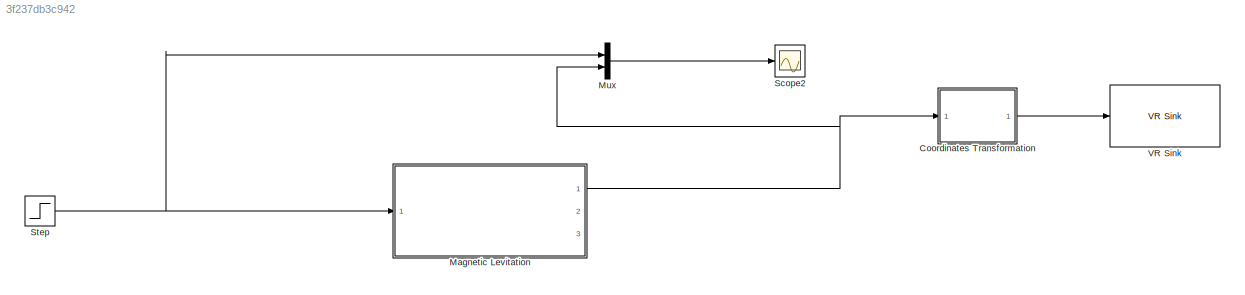
MODEL slx_3f237db3c942
KIND model
CONFIG AbsTol = 1e-5
CONFIG EnableMultiTasking = off
CONFIG FixedStep = 1e-3
CONFIG MaxStep = 0.001
CONFIG MinStep = auto
CONFIG RelTol = 1e-3
CONFIG SampleTimeConstraint = Unconstrained
CONFIG Solver = ode5
CONFIG SolverName = ode5
CONFIG StartTime = 0.0
CONFIG StopTime = 10
WORKSPACE source: MATLAB code (in-file)
WORKSPACE Ts = 1e-3  (= 0.001)
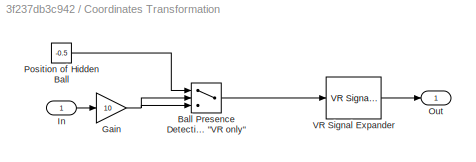
BLOCK [SubSystem] Coordinates Transformation
  Ports = [1, 1]
  RequestExecContextInheritance = off
  Variant = off
BLOCK [Switch] Coordinates Transformation/Ball Presence Detection Value > Threshold = Ball Not Present 1 for "VR only"
  SaturateOnIntegerOverflow = off
  Threshold = 1
BLOCK [Gain] Coordinates Transformation/Gain
  Gain = 10
  OutDataTypeStr = Inherit: Inherit via internal rule
  ParamDataTypeStr = Inherit: Inherit via internal rule
  SaturateOnIntegerOverflow = off
BLOCK [Inport] Coordinates Transformation/In
  IconDisplay = Port number
BLOCK [Outport] Coordinates Transformation/Out
  IconDisplay = Port number
BLOCK [Constant] Coordinates Transformation/Position of Hidden Ball
  Value = -0.5
BLOCK [Reference] Coordinates Transformation/VR Signal Expander  REF=vrlib/VR Signal Expander
  Ports = [1, 1]
  SourceBlock = vrlib/VR Signal Expander
  SourceProductBaseCode = VR
  SourceProductName = Simulink 3D Animation
  SourceType = VR Signal Expander
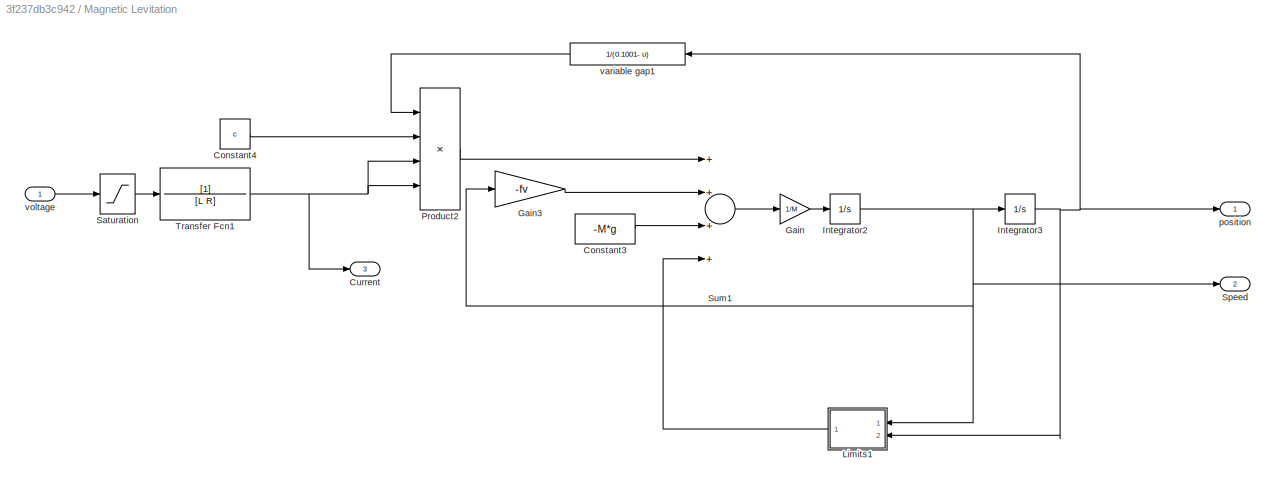
BLOCK [SubSystem] Magnetic Levitation
  Ports = [1, 3]
  RequestExecContextInheritance = off
  Variant = off
BLOCK [Constant] Magnetic Levitation/Constant3
  Value = -M*g
BLOCK [Constant] Magnetic Levitation/Constant4
  Value = c
BLOCK [Outport] Magnetic Levitation/Current
  IconDisplay = Port number
  Port = 3
BLOCK [Gain] Magnetic Levitation/Gain
  Gain = 1/M
  OutDataTypeStr = Inherit: Inherit via internal rule
  ParamDataTypeStr = Inherit: Inherit via internal rule
  SaturateOnIntegerOverflow = off
BLOCK [Gain] Magnetic Levitation/Gain3
  Gain = -fv
  OutDataTypeStr = Inherit: Inherit via internal rule
  ParamDataTypeStr = Inherit: Inherit via internal rule
  SaturateOnIntegerOverflow = off
BLOCK [Integrator] Magnetic Levitation/Integrator2
  LowerSaturationLimit = 0
  Ports = [1, 1]
BLOCK [Integrator] Magnetic Levitation/Integrator3
  InitialCondition = 0.0001
  LimitOutput = on
  LowerSaturationLimit = 0
  Ports = [1, 1]
  UpperSaturationLimit = 0.1
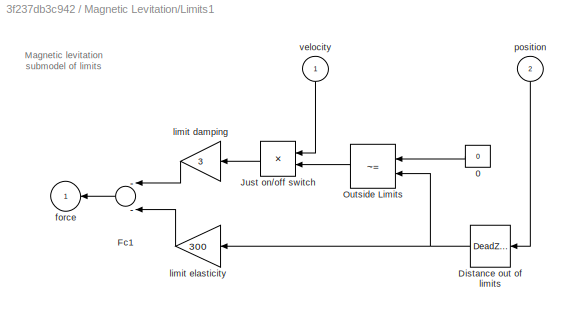
BLOCK [SubSystem] Magnetic Levitation/Limits1
  Ports = [2, 1]
  RequestExecContextInheritance = off
  ShowPortLabels = none
  Variant = off
BLOCK [Constant] Magnetic Levitation/Limits1/0
  Value = 0
BLOCK [DeadZone] Magnetic Levitation/Limits1/Distance out of limits
  LowerValue = 0.0002
  UpperValue = 0.0998
  ZeroCross = off
BLOCK [Sum] Magnetic Levitation/Limits1/Fc1
  Inputs = --
  Ports = [2, 1]
BLOCK [Product] Magnetic Levitation/Limits1/Just on//off switch 
  Ports = [2, 1]
  RndMeth = Floor
BLOCK [RelationalOperator] Magnetic Levitation/Limits1/Outside Limits
  Operator = ~=
  Ports = [2, 1]
BLOCK [Outport] Magnetic Levitation/Limits1/force
  IconDisplay = Port number
BLOCK [Gain] Magnetic Levitation/Limits1/limit damping
  Gain = 3
BLOCK [Gain] Magnetic Levitation/Limits1/limit elasticity
  Gain = 300
BLOCK [Inport] Magnetic Levitation/Limits1/position
  IconDisplay = Port number
  Port = 2
BLOCK [Inport] Magnetic Levitation/Limits1/velocity
  IconDisplay = Port number
BLOCK [Product] Magnetic Levitation/Product2
  InputSameDT = off
  Inputs = 4
  OutDataTypeStr = Inherit: Inherit via internal rule
  Ports = [4, 1]
  RndMeth = Floor
  SaturateOnIntegerOverflow = off
BLOCK [Saturate] Magnetic Levitation/Saturation
  InputPortMap = u0
  LowerLimit = 0
  Ports = [1, 1]
  UpperLimit = 200
  ZeroCross = off
BLOCK [Outport] Magnetic Levitation/Speed
  IconDisplay = Port number
  Port = 2
BLOCK [Sum] Magnetic Levitation/Sum1
  InputSameDT = off
  Inputs = ++++
  OutDataTypeStr = Inherit: Inherit via internal rule
  Ports = [4, 1]
  SaturateOnIntegerOverflow = off
BLOCK [TransferFcn] Magnetic Levitation/Transfer Fcn1
  Denominator = [L R]
BLOCK [Outport] Magnetic Levitation/position 
  IconDisplay = Port number
BLOCK [Fcn] Magnetic Levitation/variable gap1
  Expr = 1/(0.1001- u)
BLOCK [Inport] Magnetic Levitation/voltage
  IconDisplay = Port number
BLOCK [Mux] Mux
  DisplayOption = bar
  Inputs = 2
  Ports = [2, 1]
BLOCK [Scope] Scope2
  NumInputPorts = 1
  Ports = [1]
  ScopeSpecificationString = Simulink.scopes.TimeScopeBlockCfg('CurrentConfiguration', extmgr.ConfigurationSet(extmgr.Configuration('Core','General UI',true),extmgr.Configuration('Core','Source UI',true),extmgr.Configuration('Sources','WiredSimulink',true,'DataLoggingVariableName','ScopeData6'),extmgr.Configuration('Visuals','Time Domain',true,'SerializedDisplays',{struct('MinYLimReal','-0.00885','MaxYLimReal','0.07962','YLab...<+1424ch>
BLOCK [Step] Step
  After = 0.06
  SampleTime = 0
  Time = 0
BLOCK [Reference] VR Sink  REF=vrlib/VR Sink
  InstantiateOnLoad = on
  Ports = [1]
  SourceBlock = vrlib/VR Sink
  SourceProductBaseCode = VR
  SourceProductName = Simulink 3D Animation
  SourceType = Virtual Reality Sink
ANNOTATION Magnetic Levitation/Limits1: Magnetic levitation submodel of limits
LINE Coordinates Transformation/Ball Presence Detection Value > Threshold = Ball Not Present 1 for "VR only":1 -> Coordinates Transformation/VR Signal Expander:1
NET Coordinates Transformation/Gain:1 -> Coordinates Transformation/Ball Presence Detection Value > Threshold = Ball Not Present 1 for "VR only":2, Coordinates Transformation/Ball Presence Detection Value > Threshold = Ball Not Present 1 for "VR only":3
LINE Coordinates Transformation/In:1 -> Coordinates Transformation/Gain:1
LINE Coordinates Transformation/Position of Hidden Ball:1 -> Coordinates Transformation/Ball Presence Detection Value > Threshold = Ball Not Present 1 for "VR only":1
LINE Coordinates Transformation/VR Signal Expander:1 -> Coordinates Transformation/Out:1
LINE Coordinates Transformation:1 -> VR Sink:1
LINE Magnetic Levitation/Constant3:1 -> Magnetic Levitation/Sum1:3
LINE Magnetic Levitation/Constant4:1 -> Magnetic Levitation/Product2:2
LINE Magnetic Levitation/Gain3:1 -> Magnetic Levitation/Sum1:2
LINE Magnetic Levitation/Gain:1 -> Magnetic Levitation/Integrator2:1
NET Magnetic Levitation/Integrator2:1 -> Magnetic Levitation/Gain3:1, Magnetic Levitation/Integrator3:1, Magnetic Levitation/Limits1:1, Magnetic Levitation/Speed:1
NET Magnetic Levitation/Integrator3:1 -> Magnetic Levitation/Limits1:2, Magnetic Levitation/position :1, Magnetic Levitation/variable gap1:1
LINE Magnetic Levitation/Limits1/0:1 -> Magnetic Levitation/Limits1/Outside Limits:1
NET Magnetic Levitation/Limits1/Distance out of limits:1 -> Magnetic Levitation/Limits1/Outside Limits:2, Magnetic Levitation/Limits1/limit elasticity:1
LINE Magnetic Levitation/Limits1/Fc1:1 -> Magnetic Levitation/Limits1/force:1
LINE Magnetic Levitation/Limits1/Just on//off switch :1 -> Magnetic Levitation/Limits1/limit damping:1
LINE Magnetic Levitation/Limits1/Outside Limits:1 -> Magnetic Levitation/Limits1/Just on//off switch :2
LINE Magnetic Levitation/Limits1/limit damping:1 -> Magnetic Levitation/Limits1/Fc1:1
LINE Magnetic Levitation/Limits1/limit elasticity:1 -> Magnetic Levitation/Limits1/Fc1:2
LINE Magnetic Levitation/Limits1/position:1 -> Magnetic Levitation/Limits1/Distance out of limits:1
LINE Magnetic Levitation/Limits1/velocity:1 -> Magnetic Levitation/Limits1/Just on//off switch :1
LINE Magnetic Levitation/Limits1:1 -> Magnetic Levitation/Sum1:4
LINE Magnetic Levitation/Product2:1 -> Magnetic Levitation/Sum1:1
LINE Magnetic Levitation/Saturation:1 -> Magnetic Levitation/Transfer Fcn1:1
LINE Magnetic Levitation/Sum1:1 -> Magnetic Levitation/Gain:1
NET Magnetic Levitation/Transfer Fcn1:1 -> Magnetic Levitation/Current:1, Magnetic Levitation/Product2:3, Magnetic Levitation/Product2:4
LINE Magnetic Levitation/variable gap1:1 -> Magnetic Levitation/Product2:1
LINE Magnetic Levitation/voltage:1 -> Magnetic Levitation/Saturation:1
NET Magnetic Levitation:1 -> Coordinates Transformation:1, Mux:2
LINE Mux:1 -> Scope2:1
NET Step:1 -> Magnetic Levitation:1, Mux:1
note: NET lines group one-source signal fan-out (src -> all destinations, sorted); 1:1 wires keep LINE
